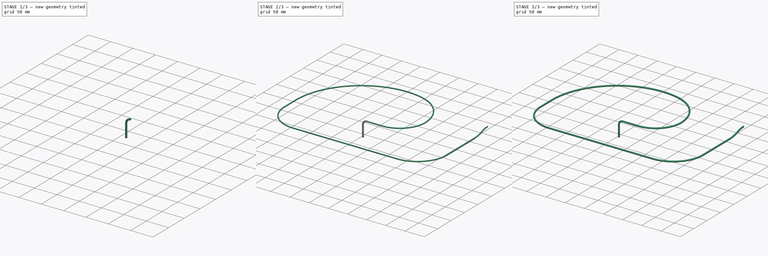
[diagram: build sequence overview — one tinted view per stage of 3, left to right]
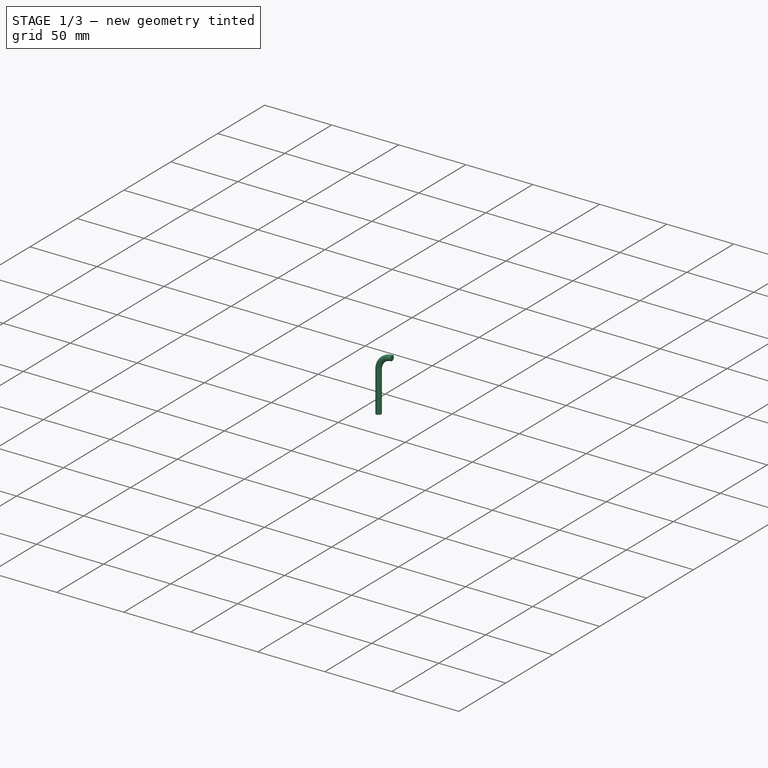
[diagram: stage 1 of 3 — iso view after this stage's code; geometry added in this stage tinted green]
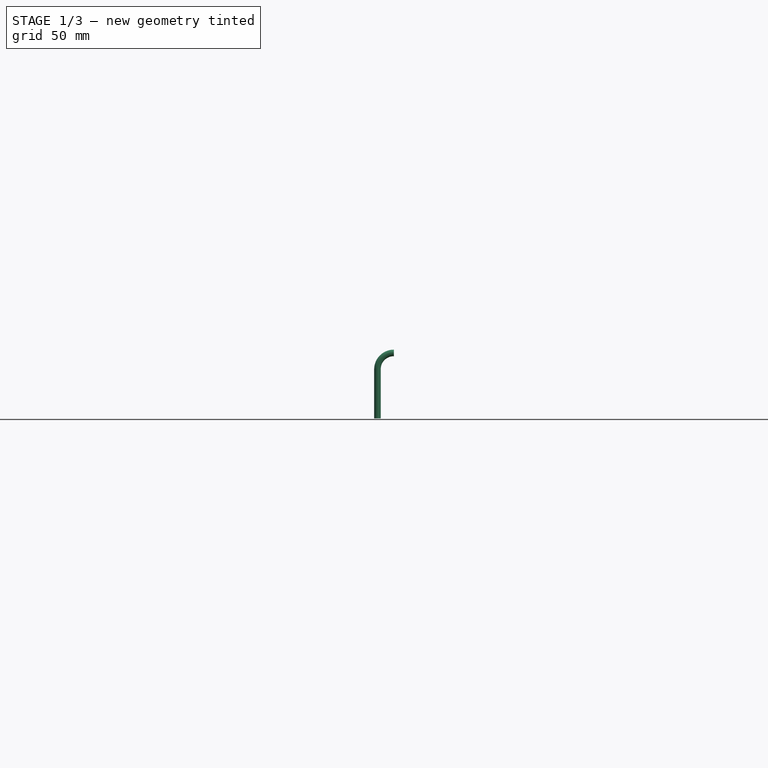
[diagram: stage 1 of 3 — front view after this stage's code; geometry added in this stage tinted green]
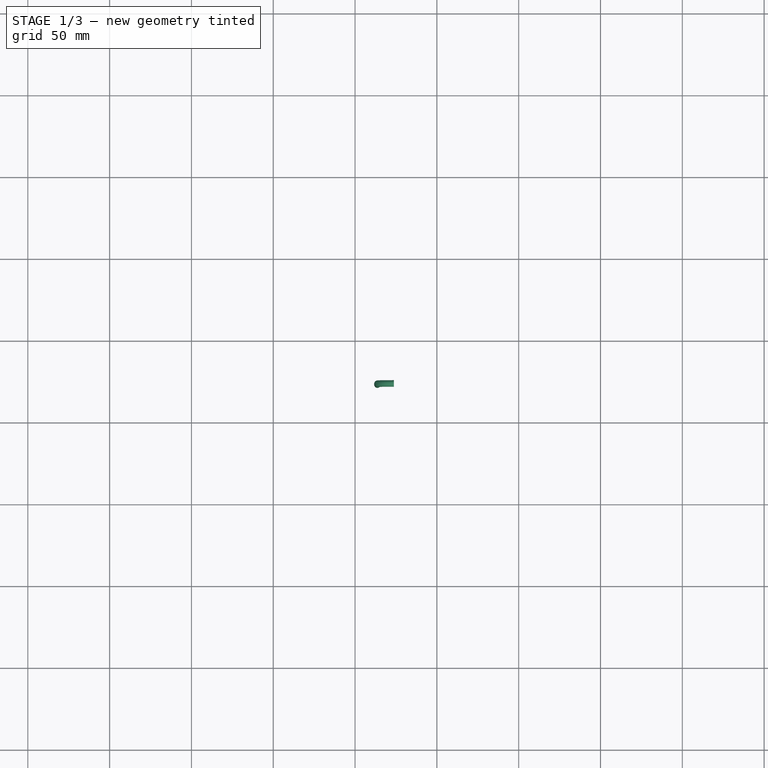
[diagram: stage 1 of 3 — top view after this stage's code; geometry added in this stage tinted green]
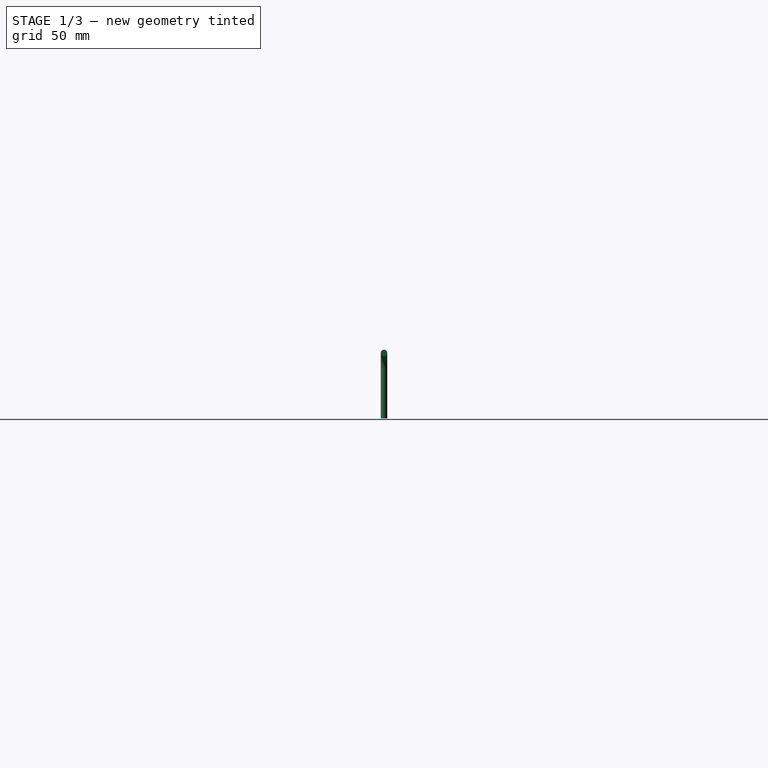
[diagram: stage 1 of 3 — right view after this stage's code; geometry added in this stage tinted green]
FCSTD DOCUMENT  (FreeCAD 0.14R3310 (Git))
Label: 91. TUBO GUIA DEL FILAMENTO
License: CC-BY 3.0
LicenseURL: http://creativecommons.org/licenses/by/3.0/
objects: Sketcher::SketchObject×6, Part::Sweep×4, Part::Cut×2, Part::MultiFuse×1
note: 13 computed .brp shape members not serialized (recipe doc carries the construction recipe); baked Part::Feature solids carry a one-line shape summary decoded from their .brp

FEATURE [Sketcher::SketchObject] Sketch003
  Placement = pos=(0,-126.53,0) rot=(-1,0,0;4.71239rad)
  sketch-geometry (2):
    g0: LineSegment StartX=-236.316 StartY=-10 StartZ=0 EndX=-236.316 EndY=-40 EndZ=0
    g1: ArcOfCircle CenterX=-226.316 CenterY=-10 CenterZ=0 NormalX=0 NormalY=0 NormalZ=1 Radius=10 StartAngle=1.5708 EndAngle=3.14159
  constraints (5):
    c: Coincident(g1,g0)
    c: Tangent(g1,g-1)
    c: DistanceX(g-2,g1) = -226.316
    c: Tangent(g1,g0)
    c: DistanceY(g-1,g0) = -40
FEATURE [Part::Sweep] Sweep002
  Frenet = false
  Sections = -> [Sketch004]
  Solid = true
  Spine = -> Sketch003 [Edge1,Edge2]
  Transition = 1
FEATURE [Sketcher::SketchObject] Sketch005
  Placement = pos=(-226.31,0,0) rot=(0.57735,0.57735,0.57735;2.0944rad)
  sketch-geometry (1):
    g0: Circle CenterX=-126.532 CenterY=0 CenterZ=0 NormalX=0 NormalY=0 NormalZ=1 Radius=1.5
  constraints (3):
    c: PointOnObject(g0,g-1)
    c: Radius(g0) = 1.5
    c: DistanceX(g-2,g0) = -126.532
FEATURE [Part::Sweep] Sweep003
  Frenet = false
  Sections = -> [Sketch005]
  Solid = true
  Spine = -> Sketch003 [Edge1,Edge2]
  Transition = 1
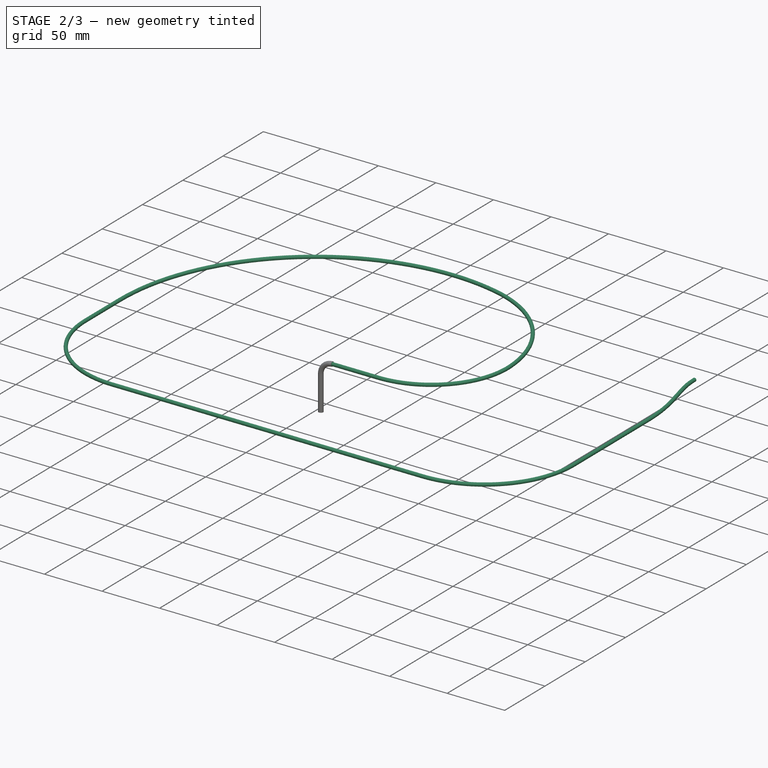
[diagram: stage 2 of 3 — iso view after this stage's code; geometry added in this stage tinted green]
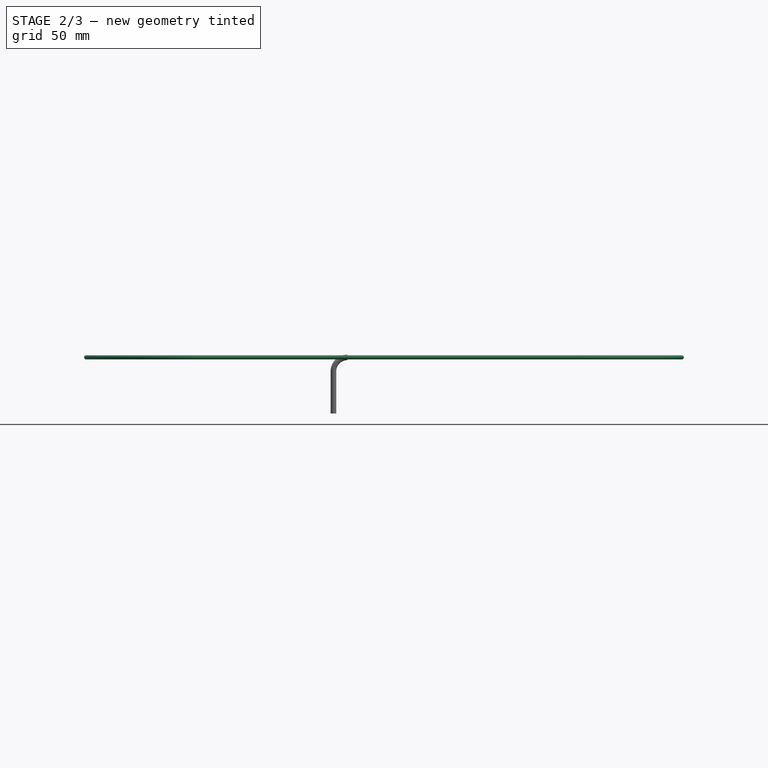
[diagram: stage 2 of 3 — front view after this stage's code; geometry added in this stage tinted green]
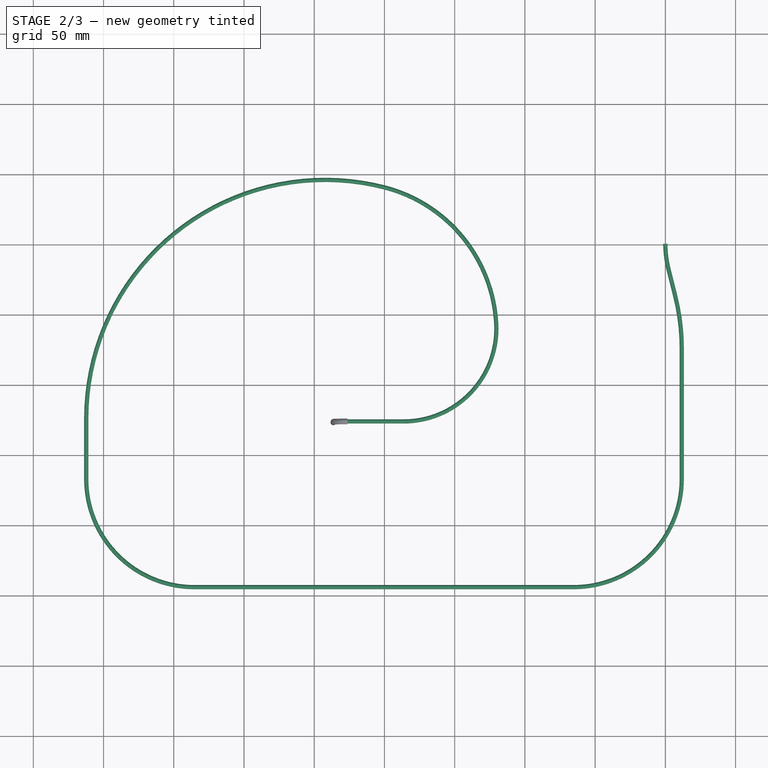
[diagram: stage 2 of 3 — top view after this stage's code; geometry added in this stage tinted green]
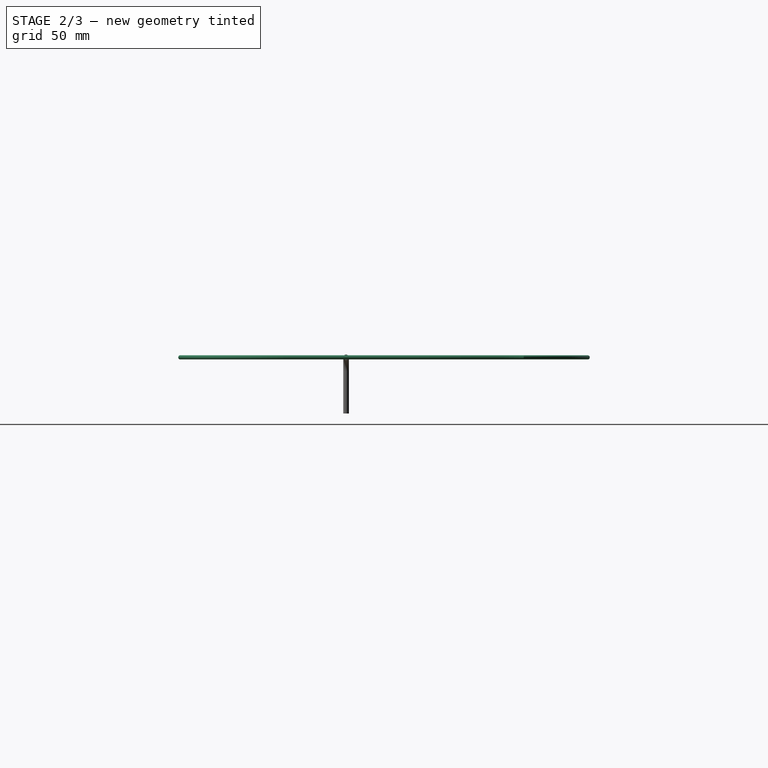
[diagram: stage 2 of 3 — right view after this stage's code; geometry added in this stage tinted green]
FEATURE [Sketcher::SketchObject] Sketch004
  Placement = pos=(-226.31,0,0) rot=(0.57735,0.57735,0.57735;2.0944rad)
  sketch-geometry (1):
    g0: Circle CenterX=-126.532 CenterY=0 CenterZ=0 NormalX=0 NormalY=0 NormalZ=1 Radius=2
  constraints (3):
    c: PointOnObject(g0,g-1)
    c: Radius(g0) = 2
    c: DistanceX(g-2,g0) = -126.532
FEATURE [Sketcher::SketchObject] Sketch002
  Placement = pos=(0,0,0) rot=(-1,0,0;4.71239rad)
  sketch-geometry (1):
    g0: Circle CenterX=0 CenterY=0 CenterZ=0 NormalX=0 NormalY=0 NormalZ=1 Radius=1.5
  constraints (1):
    c: Coincident(g0,g-1)
FEATURE [Part::Sweep] Sweep001
  Frenet = false
  Sections = -> [Sketch002]
  Solid = true
  Spine = -> Sketch001 [Edge12,Edge11,Edge10,Edge9,Edge8,Edge7,Edge6,Edge5,Edge4,Edge3,Edge2,Edge1]
  Transition = 1
FEATURE [Part::Cut] Cut001
  Base = -> Sweep002
  Tool = -> Sweep003
FEATURE [Part::MultiFuse] Fusion
  Shapes = -> [Cut,Cut001]
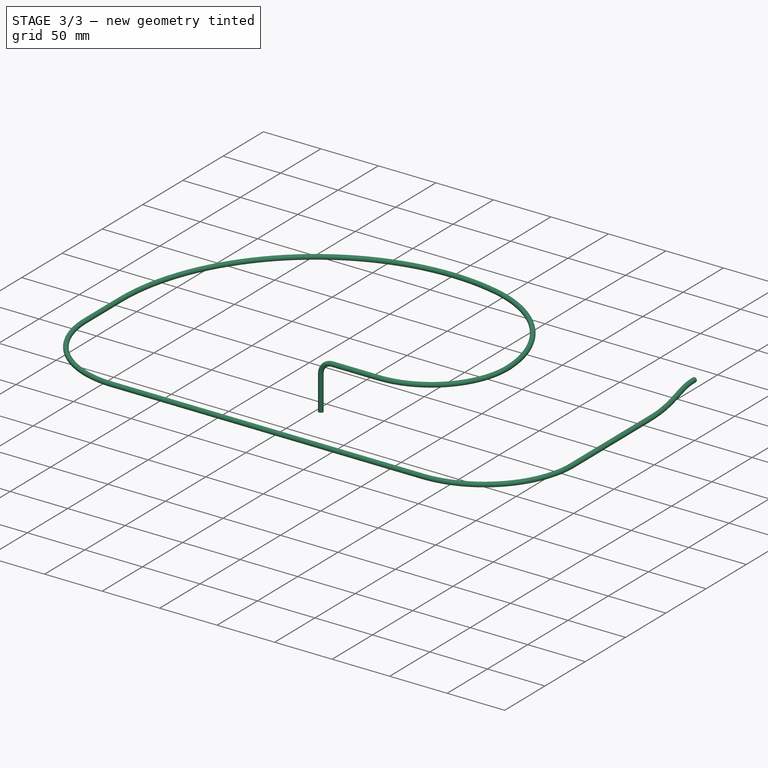
[diagram: stage 3 of 3 — iso view after this stage's code; geometry added in this stage tinted green]
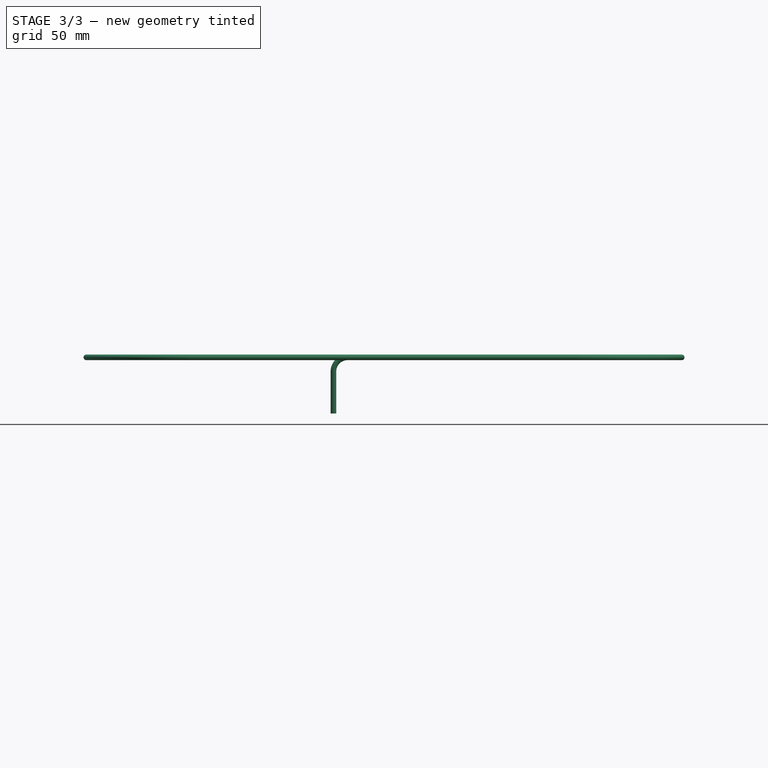
[diagram: stage 3 of 3 — front view after this stage's code; geometry added in this stage tinted green]
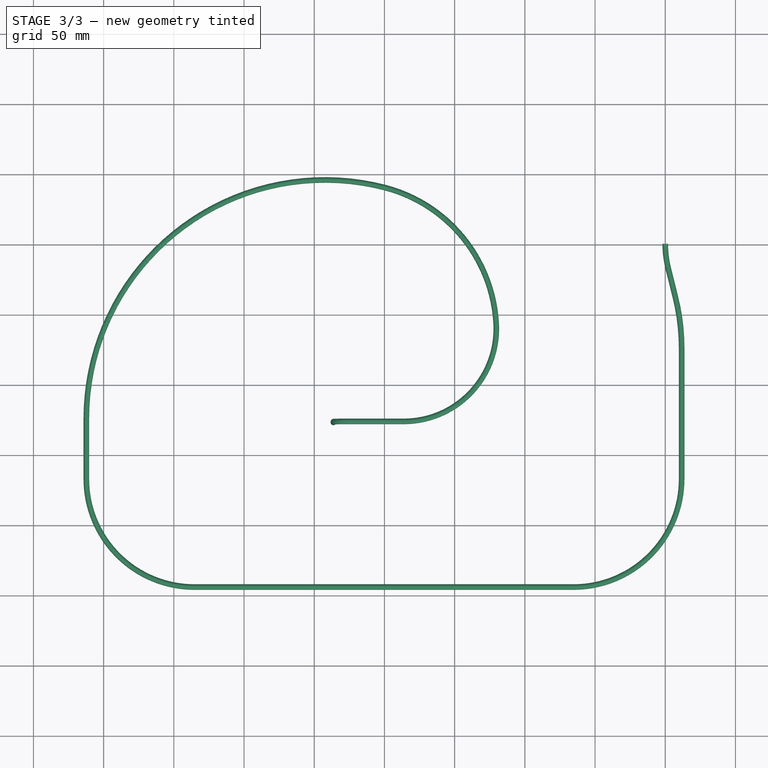
[diagram: stage 3 of 3 — top view after this stage's code; geometry added in this stage tinted green]
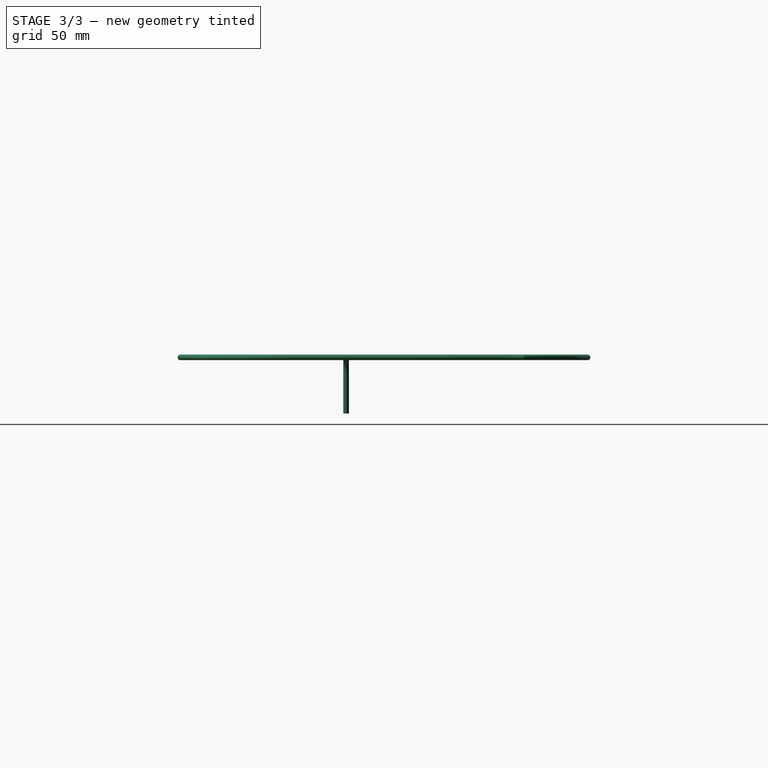
[diagram: stage 3 of 3 — right view after this stage's code; geometry added in this stage tinted green]
FEATURE [Sketcher::SketchObject] Sketch001  label="LINEA GUIA"
  Placement = pos=(0,0,0) rot=(1,0,0;3.14159rad)
  sketch-geometry (12):
    g0: ArcOfCircle CenterX=73 CenterY=1.93099e-07 CenterZ=0 NormalX=0 NormalY=0 NormalZ=1 Radius=73 StartAngle=2.89777 EndAngle=3.14159
    g1: LineSegment StartX=2.15917 StartY=17.6232 StartZ=0 EndX=7.1878 EndY=37.837 EndZ=0
    g2: ArcOfCircle CenterX=-140.316 CenterY=74.5319 CenterZ=0 NormalX=0 NormalY=0 NormalZ=1 Radius=152 StartAngle=6.03936 EndAngle=6.28319
    g3: LineSegment StartX=11.6836 StartY=74.532 StartZ=0 EndX=11.6836 EndY=167.532 EndZ=0
    g4: ArcOfCircle CenterX=-65.3164 CenterY=167.532 CenterZ=0 NormalX=0 NormalY=0 NormalZ=1 Radius=76.9999 StartAngle=3.9645e-07 EndAngle=1.5708
    g5: LineSegment StartX=-65.3164 StartY=244.532 StartZ=0 EndX=-335.316 EndY=244.532 EndZ=0
    g6: ArcOfCircle CenterX=-335.316 CenterY=167.532 CenterZ=0 NormalX=0 NormalY=0 NormalZ=1 Radius=76.9997 StartAngle=1.5708 EndAngle=3.14159
    g7: LineSegment StartX=-412.316 StartY=167.532 StartZ=0 EndX=-412.316 EndY=124.532 EndZ=0
    g8: ArcOfCircle CenterX=-242.316 CenterY=124.532 CenterZ=0 NormalX=0 NormalY=0 NormalZ=1 Radius=170 StartAngle=3.14159 EndAngle=4.96591
    g9: ArcOfCircle CenterX=-226.264 CenterY=62.5775 CenterZ=0 NormalX=0 NormalY=0 NormalZ=1 Radius=106 StartAngle=4.96591 EndAngle=6.23202
    g10: ArcOfCircle CenterX=-186.316 CenterY=60.5318 CenterZ=0 NormalX=0 NormalY=0 NormalZ=1 Radius=66 StartAngle=6.23202 EndAngle=7.85398
    g11: LineSegment StartX=-186.316 StartY=126.532 StartZ=0 EndX=-226.316 EndY=126.532 EndZ=0
  constraints (30):
    c: Coincident(g0,g-1)
    c: Tangent(g0,g-2)
    c: Coincident(g1,g0)
    c: Tangent(g1,g0)
    c: Angle(g1,g-1) = 1.81462
    c: Coincident(g2,g1)
    c: Tangent(g2,g1)
    c: Coincident(g3,g2)
    c: Tangent(g3,g2)
    c: Coincident(g4,g3)
    c: Tangent(g3,g4)
    c: Coincident(g5,g4)
    c: Angle(g5,g3) = 1.5708
    c: Tangent(g4,g5)
    c: Coincident(g6,g5)
    c: Tangent(g6,g5)
    c: Coincident(g7,g6)
    c: Tangent(g7,g6)
    c: Angle(g7,g5) = 1.5708
    c: Coincident(g8,g7)
    c: Tangent(g7,g8)
    c: Coincident(g9,g8)
    c: Tangent(g8,g9)
    c: Coincident(g11,g10)
    c: Coincident(g10,g9)
    c: Parallel(g11,g5)
    c: Tangent(g10,g11)
    c: Tangent(g10,g9)
    c: Distance(g11,g5) = 118
    c: Distance(g11,g7) = 186
FEATURE [Sketcher::SketchObject] Sketch
  Placement = pos=(0,0,0) rot=(-1,0,0;4.71239rad)
  sketch-geometry (1):
    g0: Circle CenterX=0 CenterY=0 CenterZ=0 NormalX=0 NormalY=0 NormalZ=1 Radius=2
  constraints (2):
    c: Coincident(g0,g-1)
    c: Radius(g0) = 2
FEATURE [Part::Sweep] Sweep
  Frenet = false
  Sections = -> [Sketch]
  Solid = true
  Spine = -> Sketch001 [Edge12,Edge11,Edge10,Edge9,Edge8,Edge7,Edge6,Edge5,Edge4,Edge3,Edge2,Edge1]
  Transition = 1
FEATURE [Part::Cut] Cut
  Base = -> Sweep
  Tool = -> Sweep001
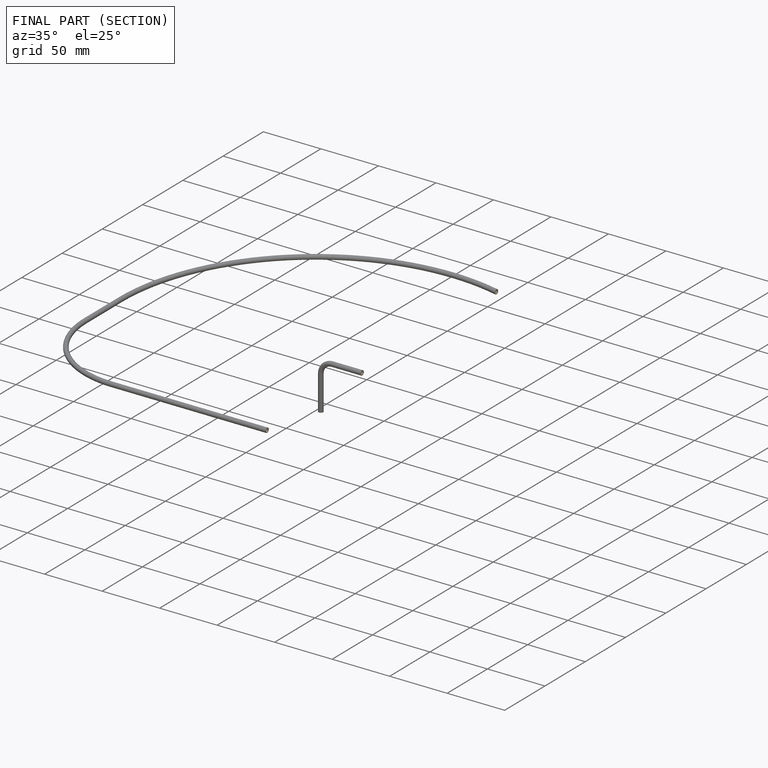
[diagram: finished part — half-section view (interior)]
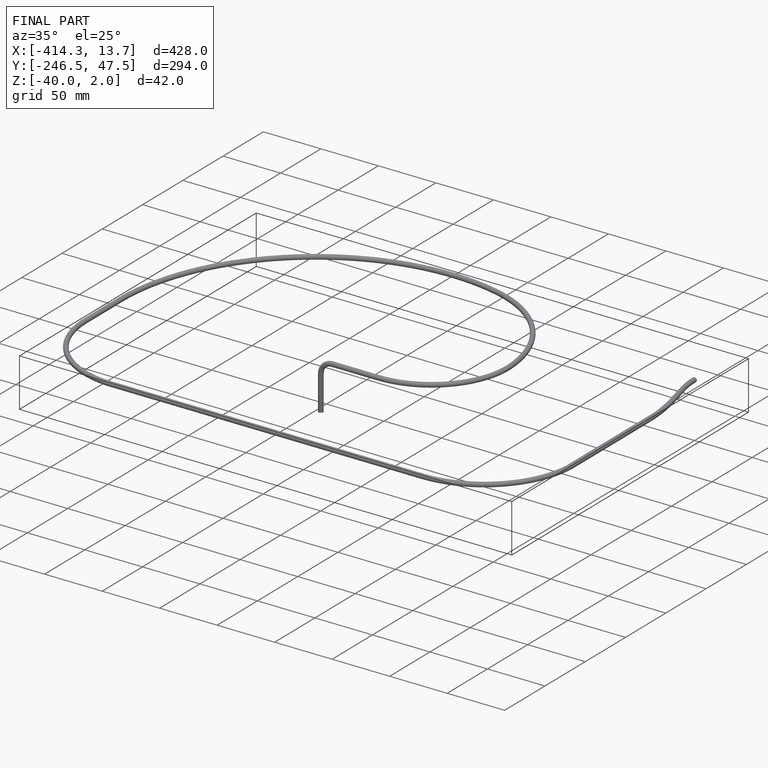
[diagram: finished part — iso view with bounding-box wireframe]
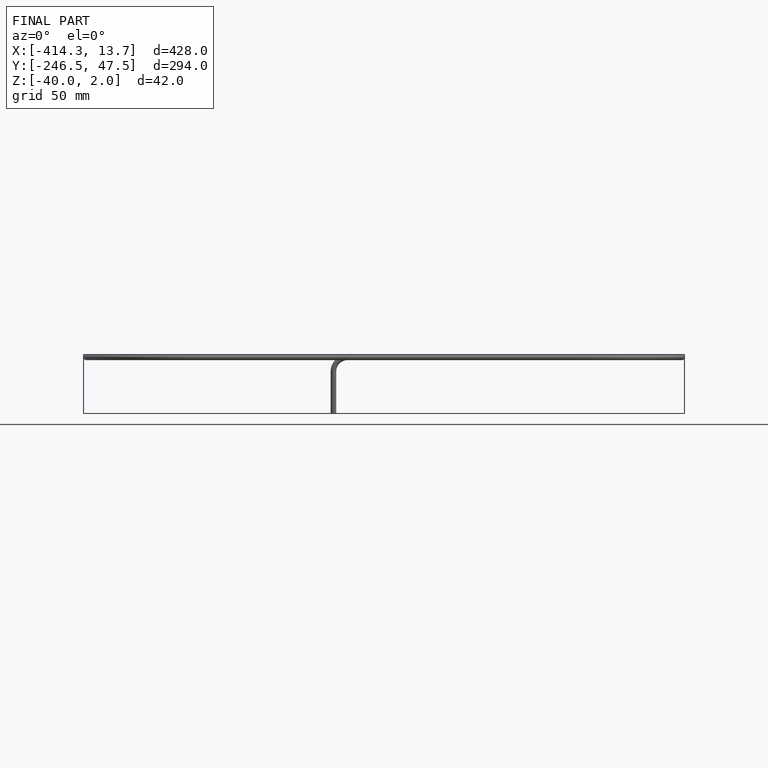
[diagram: finished part — front view with bounding-box wireframe]
